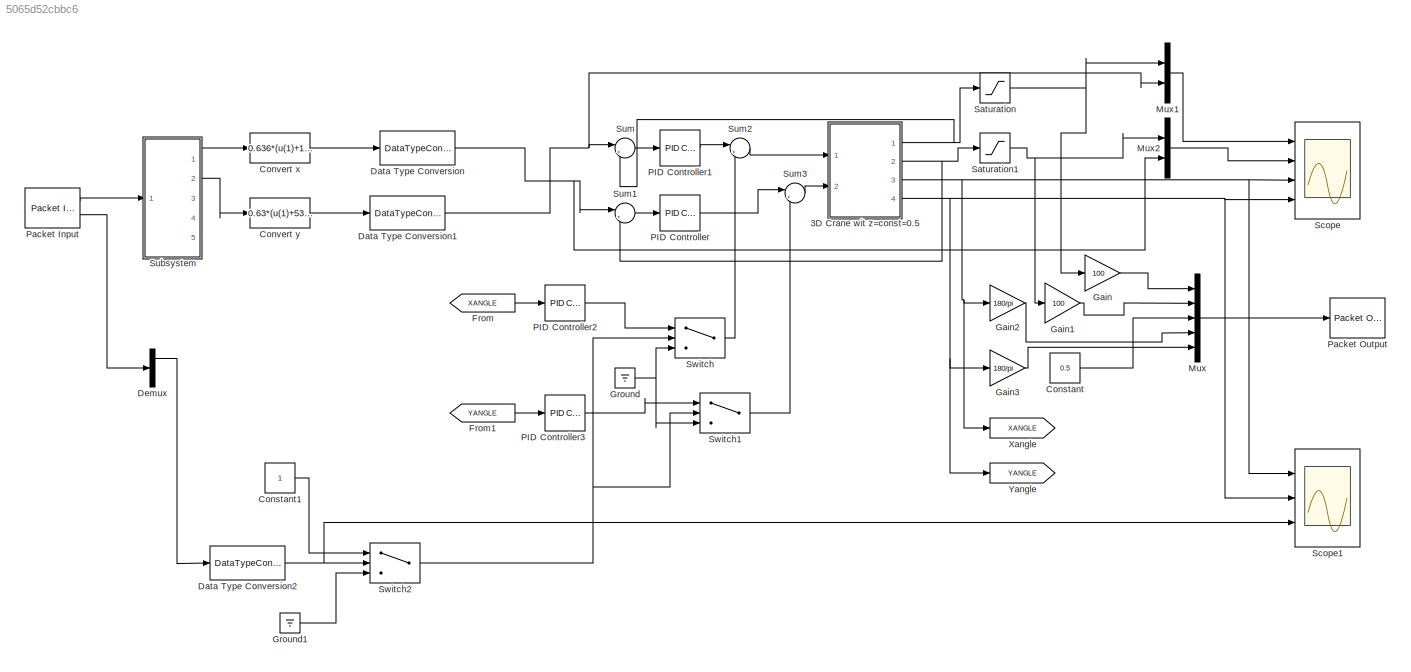
MODEL slx_5065d52cbbc6
KIND model
CONFIG AbsTol = auto
CONFIG EnableMultiTasking = on
CONFIG FixedStep = 0.01
CONFIG MaxStep = auto
CONFIG MinStep = auto
CONFIG RelTol = 1e-3
CONFIG SampleTimeConstraint = Unconstrained
CONFIG Solver = ode5
CONFIG SolverName = ode5
CONFIG StartTime = 0.0
CONFIG StopTime = 600
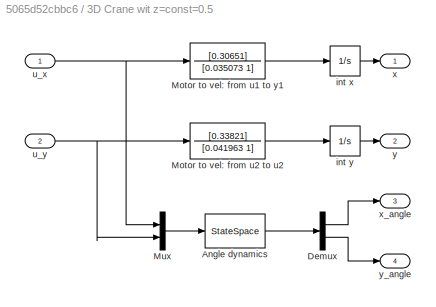
BLOCK [SubSystem] 3D Crane wit z=const=0.5
  Ports = [2, 4]
  RequestExecContextInheritance = off
BLOCK [StateSpace] 3D Crane wit z=const=0.5/Angle dynamics
  A = [-0.4378 3.513 0.5394 -1.908; -3.805 0.2155 -1.548 -0.8172; -0.09133 1.339 -0.01787 4.342; 1.134 0.05343 -3.03 0.14]
  B = [0.565 0.2181; -1.117  -6.745; -0.134  -2.301; 4.813  -3.149]
  C = [-0.01239 0.02454 -0.005247 -0.03695; -0.04552 0.09786 0.03011 -0.02336]
  D = [-0.001128 0.001387; 0.001184 0.00121]
  InitialCondition = 0
  Ports = [1, 1]
BLOCK [Demux] 3D Crane wit z=const=0.5/Demux
  DisplayOption = bar
  Outputs = 2
  Ports = [1, 2]
BLOCK [TransferFcn] 3D Crane wit z=const=0.5/Motor to vel: from u1 to y1
  Denominator = [0.035073 1]
  Numerator = [0.30651]
BLOCK [TransferFcn] 3D Crane wit z=const=0.5/Motor to vel: from u2 to u2
  Denominator = [0.041963 1]
  Numerator = [0.33821]
BLOCK [Mux] 3D Crane wit z=const=0.5/Mux
  DisplayOption = bar
  Inputs = 2
  Ports = [2, 1]
BLOCK [Integrator] 3D Crane wit z=const=0.5/int x
  InitialCondition = x_0
  Ports = [1, 1]
BLOCK [Integrator] 3D Crane wit z=const=0.5/int y
  InitialCondition = y_0
  Ports = [1, 1]
BLOCK [Inport] 3D Crane wit z=const=0.5/u_x
  IconDisplay = Port number
BLOCK [Inport] 3D Crane wit z=const=0.5/u_y
  IconDisplay = Port number
  Port = 2
BLOCK [Outport] 3D Crane wit z=const=0.5/x
  IconDisplay = Port number
BLOCK [Outport] 3D Crane wit z=const=0.5/x_angle
  IconDisplay = Port number
  Port = 3
BLOCK [Outport] 3D Crane wit z=const=0.5/y
  IconDisplay = Port number
  Port = 2
BLOCK [Outport] 3D Crane wit z=const=0.5/y_angle
  IconDisplay = Port number
  Port = 4
BLOCK [Constant] Constant
  Value = 0.5
BLOCK [Constant] Constant1
BLOCK [Fcn] Convert x 
  Expr = 0.636*(u(1)+15.834)/(63.914+15.834)
BLOCK [Fcn] Convert y
  Expr = 0.63*(u(1)+53.00)/(26.485+53.00)
BLOCK [DataTypeConversion] Data Type Conversion
  RndMeth = Floor
  SaturateOnIntegerOverflow = off
BLOCK [DataTypeConversion] Data Type Conversion1
  RndMeth = Floor
  SaturateOnIntegerOverflow = off
BLOCK [DataTypeConversion] Data Type Conversion2
  OutDataTypeStr = double
  RndMeth = Floor
  SaturateOnIntegerOverflow = off
BLOCK [Demux] Demux
  DisplayOption = bar
  Outputs = 3
  Ports = [1, 3]
BLOCK [From] From
  GotoTag = XANGLE
BLOCK [From] From1
  GotoTag = YANGLE
BLOCK [Gain] Gain
  Gain = 100
  OutDataTypeStr = Inherit: Inherit via internal rule
  ParamDataTypeStr = Inherit: Inherit via internal rule
  SaturateOnIntegerOverflow = off
BLOCK [Gain] Gain1
  Gain = 100
  OutDataTypeStr = Inherit: Inherit via internal rule
  ParamDataTypeStr = Inherit: Inherit via internal rule
  SaturateOnIntegerOverflow = off
BLOCK [Gain] Gain2
  Gain = 180/pi
  OutDataTypeStr = Inherit: Inherit via internal rule
  ParamDataTypeStr = Inherit: Inherit via internal rule
  SaturateOnIntegerOverflow = off
BLOCK [Gain] Gain3
  Gain = 180/pi
  OutDataTypeStr = Inherit: Inherit via internal rule
  ParamDataTypeStr = Inherit: Inherit via internal rule
  SaturateOnIntegerOverflow = off
BLOCK [Ground] Ground
BLOCK [Ground] Ground1
BLOCK [Mux] Mux
  DisplayOption = bar
  Inputs = 5
  Ports = [5, 1]
BLOCK [Mux] Mux1
  DisplayOption = bar
  Inputs = 2
  Ports = [2, 1]
BLOCK [Mux] Mux2
  DisplayOption = bar
  Inputs = 2
  Ports = [2, 1]
BLOCK [Reference] PID Controller  REF=simulink/Continuous/PID Controller
  Ports = [1, 1]
  SourceBlock = simulink/Continuous/PID Controller
  SourceProductBaseCode = SL
  SourceProductName = Simulink
  SourceType = PID 1dof
BLOCK [Reference] PID Controller1  REF=simulink/Continuous/PID Controller
  Ports = [1, 1]
  SourceBlock = simulink/Continuous/PID Controller
  SourceProductBaseCode = SL
  SourceProductName = Simulink
  SourceType = PID 1dof
BLOCK [Reference] PID Controller2  REF=simulink/Continuous/PID Controller
  Ports = [1, 1]
  SourceBlock = simulink/Continuous/PID Controller
  SourceProductBaseCode = SL
  SourceProductName = Simulink
  SourceType = PID 1dof
BLOCK [Reference] PID Controller3  REF=simulink/Continuous/PID Controller
  Ports = [1, 1]
  SourceBlock = simulink/Continuous/PID Controller
  SourceProductBaseCode = SL
  SourceProductName = Simulink
  SourceType = PID 1dof
BLOCK [Reference] Packet Input  REF=sldrtlib/Packet Input
  AttributesFormatString = UDP Protocol [9977]
  Ports = [0, 2]
  SourceBlock = sldrtlib/Packet Input
  SourceProductBaseCode = WT
  SourceProductName = Simulink Desktop Real-Time
  SourceType = Simulink Desktop Real-Time Packet Input
BLOCK [Reference] Packet Output  REF=sldrtlib/Packet Output
  AttributesFormatString = UDP Protocol [9999]
  Ports = [1]
  SourceBlock = sldrtlib/Packet Output
  SourceProductBaseCode = WT
  SourceProductName = Simulink Desktop Real-Time
  SourceType = Simulink Desktop Real-Time Packet Output
BLOCK [Saturate] Saturation
  InputPortMap = u0
  LowerLimit = 0
  Ports = [1, 1]
  UpperLimit = 0.63
BLOCK [Saturate] Saturation1
  InputPortMap = u0
  LowerLimit = 0
  Ports = [1, 1]
  UpperLimit = 0.636
BLOCK [Scope] Scope
  Floating = off
  NumInputPorts = 4
  Ports = [4]
  ScopeSpecificationString = Simulink.scopes.TimeScopeBlockCfg('CurrentConfiguration', extmgr.ConfigurationSet(extmgr.Configuration('Core','General UI',true),extmgr.Configuration('Core','Source UI',true),extmgr.Configuration('Sources','WiredSimulink',true,'DataLogging',true,'DataLoggingVariableName','sd'),extmgr.Configuration('Visuals','Time Domain',true,'SerializedDisplays',{struct('MinYLimReal','-0.07862','MaxYLimReal','0.7...<+3500ch>
BLOCK [Scope] Scope1
  Floating = off
  NumInputPorts = 3
  Ports = [3]
  ScopeSpecificationString = Simulink.scopes.TimeScopeBlockCfg('CurrentConfiguration', extmgr.ConfigurationSet(extmgr.Configuration('Core','General UI',true),extmgr.Configuration('Core','Source UI',true),extmgr.Configuration('Sources','WiredSimulink',true,'DataLogging',true,'DataLoggingVariableName','ScopeData1'),extmgr.Configuration('Visuals','Time Domain',true,'SerializedDisplays',{struct('MinYLimReal','-0.51751','MaxYLimRe...<+2768ch>
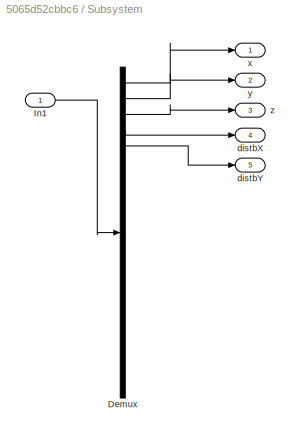
BLOCK [SubSystem] Subsystem
  Ports = [1, 5]
  RequestExecContextInheritance = off
BLOCK [Demux] Subsystem/Demux
  DisplayOption = bar
  Outputs = 20
  Ports = [1, 20]
BLOCK [Inport] Subsystem/In1
  IconDisplay = Port number
BLOCK [Outport] Subsystem/distbX
  IconDisplay = Port number
  Port = 4
BLOCK [Outport] Subsystem/distbY 
  IconDisplay = Port number
  Port = 5
BLOCK [Outport] Subsystem/x
  IconDisplay = Port number
BLOCK [Outport] Subsystem/y
  IconDisplay = Port number
  Port = 2
BLOCK [Outport] Subsystem/z
  IconDisplay = Port number
  Port = 3
BLOCK [Sum] Sum
  IconShape = round
  InputSameDT = off
  Inputs = |+-
  OutDataTypeStr = Inherit: Inherit via internal rule
  Ports = [2, 1]
  SaturateOnIntegerOverflow = off
BLOCK [Sum] Sum1
  IconShape = round
  InputSameDT = off
  Inputs = |+-
  OutDataTypeStr = Inherit: Inherit via internal rule
  Ports = [2, 1]
  SaturateOnIntegerOverflow = off
BLOCK [Sum] Sum2
  IconShape = round
  InputSameDT = off
  Inputs = |++
  OutDataTypeStr = Inherit: Inherit via internal rule
  Ports = [2, 1]
  SaturateOnIntegerOverflow = off
BLOCK [Sum] Sum3
  IconShape = round
  InputSameDT = off
  Inputs = |++
  OutDataTypeStr = Inherit: Inherit via internal rule
  Ports = [2, 1]
  SaturateOnIntegerOverflow = off
BLOCK [Switch] Switch
  Criteria = u2 > Threshold
  InputSameDT = off
  SaturateOnIntegerOverflow = off
BLOCK [Switch] Switch1
  Criteria = u2 > Threshold
  InputSameDT = off
  SaturateOnIntegerOverflow = off
BLOCK [Switch] Switch2
  Criteria = u2 > Threshold
  InputSameDT = off
  SaturateOnIntegerOverflow = off
BLOCK [Goto] Xangle
  GotoTag = XANGLE
BLOCK [Goto] Yangle
  GotoTag = YANGLE
LINE 3D Crane wit z=const=0.5/Angle dynamics:1 -> 3D Crane wit z=const=0.5/Demux:1
LINE 3D Crane wit z=const=0.5/Demux:1 -> 3D Crane wit z=const=0.5/x_angle:1
LINE 3D Crane wit z=const=0.5/Demux:2 -> 3D Crane wit z=const=0.5/y_angle:1
LINE 3D Crane wit z=const=0.5/Motor to vel: from u1 to y1:1 -> 3D Crane wit z=const=0.5/int x:1
LINE 3D Crane wit z=const=0.5/Motor to vel: from u2 to u2:1 -> 3D Crane wit z=const=0.5/int y:1
LINE 3D Crane wit z=const=0.5/Mux:1 -> 3D Crane wit z=const=0.5/Angle dynamics:1
LINE 3D Crane wit z=const=0.5/int x:1 -> 3D Crane wit z=const=0.5/x:1
LINE 3D Crane wit z=const=0.5/int y:1 -> 3D Crane wit z=const=0.5/y:1
NET 3D Crane wit z=const=0.5/u_x:1 -> 3D Crane wit z=const=0.5/Motor to vel: from u1 to y1:1, 3D Crane wit z=const=0.5/Mux:1
NET 3D Crane wit z=const=0.5/u_y:1 -> 3D Crane wit z=const=0.5/Motor to vel: from u2 to u2:1, 3D Crane wit z=const=0.5/Mux:2
NET 3D Crane wit z=const=0.5:1 -> Saturation:1, Sum:2
NET 3D Crane wit z=const=0.5:2 -> Saturation1:1, Sum1:2
NET 3D Crane wit z=const=0.5:3 -> Gain2:1, Scope1:1, Scope:3, Xangle:1
NET 3D Crane wit z=const=0.5:4 -> Gain3:1, Scope1:2, Scope:4, Yangle:1
LINE Constant1:1 -> Switch2:1
LINE Constant:1 -> Mux:3
LINE Convert x :1 -> Data Type Conversion:1
LINE Convert y:1 -> Data Type Conversion1:1
NET Data Type Conversion1:1 -> Mux1:2, Sum:1
NET Data Type Conversion2:1 -> Scope1:3, Switch2:2
NET Data Type Conversion:1 -> Mux2:2, Sum1:1
LINE Demux:1 -> Data Type Conversion2:1
LINE From1:1 -> PID Controller3:1
LINE From:1 -> PID Controller2:1
LINE Gain1:1 -> Mux:2
LINE Gain2:1 -> Mux:4
LINE Gain3:1 -> Mux:5
LINE Gain:1 -> Mux:1
LINE Ground1:1 -> Switch2:3
NET Ground:1 -> Switch1:3, Switch:3
LINE Mux1:1 -> Scope:1
LINE Mux2:1 -> Scope:2
LINE Mux:1 -> Packet Output:1
LINE PID Controller1:1 -> Sum2:1
LINE PID Controller2:1 -> Switch:1
LINE PID Controller3:1 -> Switch1:1
LINE PID Controller:1 -> Sum3:1
LINE Packet Input:1 -> Subsystem:1
LINE Packet Input:2 -> Demux:1
NET Saturation1:1 -> Gain1:1, Mux2:1
NET Saturation:1 -> Gain:1, Mux1:1
LINE Subsystem/Demux:1 -> Subsystem/x:1
LINE Subsystem/Demux:2 -> Subsystem/y:1
LINE Subsystem/Demux:3 -> Subsystem/z:1
LINE Subsystem/Demux:4 -> Subsystem/distbX:1
LINE Subsystem/Demux:5 -> Subsystem/distbY :1
LINE Subsystem/In1:1 -> Subsystem/Demux:1
LINE Subsystem:1 -> Convert x :1
LINE Subsystem:2 -> Convert y:1
LINE Sum1:1 -> PID Controller:1
LINE Sum2:1 -> 3D Crane wit z=const=0.5:1
LINE Sum3:1 -> 3D Crane wit z=const=0.5:2
LINE Sum:1 -> PID Controller1:1
LINE Switch1:1 -> Sum3:2
NET Switch2:1 -> Switch1:2, Switch:2
LINE Switch:1 -> Sum2:2
note: NET lines group one-source signal fan-out (src -> all destinations, sorted); 1:1 wires keep LINE
